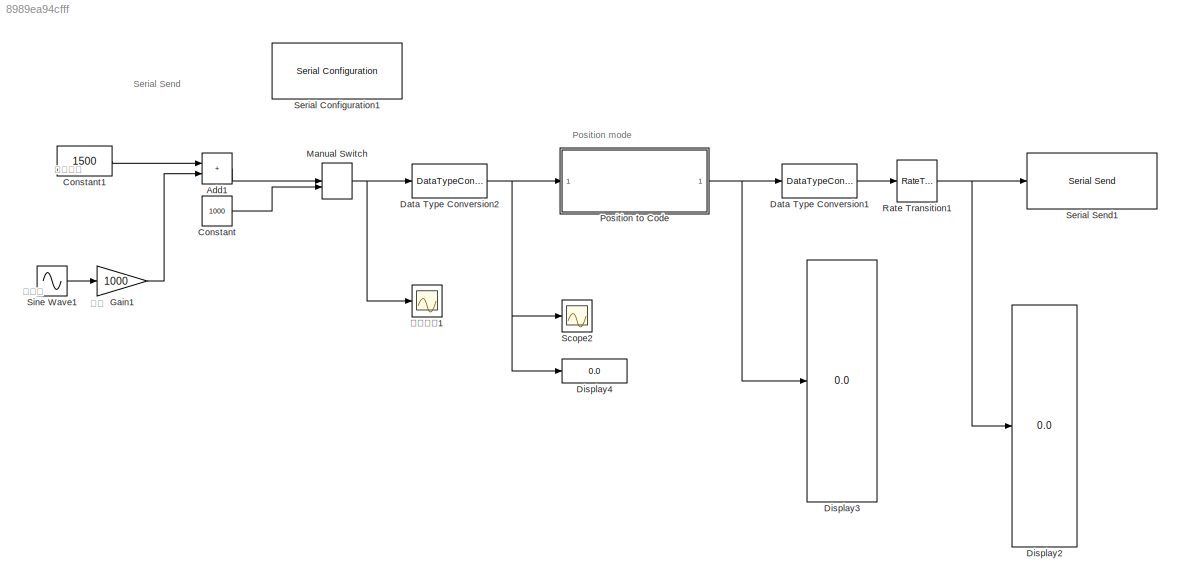
MODEL slx_8989ea94cfff
KIND model
CONFIG AbsTol = auto
CONFIG EnableMultiTasking = off
CONFIG FixedStep = 0.002
CONFIG MaxStep = auto
CONFIG MinStep = auto
CONFIG RelTol = 1e-3
CONFIG SampleTimeConstraint = Unconstrained
CONFIG Solver = ode4
CONFIG SolverName = ode4
CONFIG StartTime = 0.0
CONFIG StopTime = 10
BLOCK [Sum] Add1
  IconShape = rectangular
  Ports = [2, 1]
BLOCK [Constant] Constant
  Value = 1000
BLOCK [Constant] Constant1
  OutDataTypeStr = int16
  SampleTime = 1
  Value = 1500
BLOCK [DataTypeConversion] Data Type Conversion1
  OutDataTypeStr = uint8
  RndMeth = Floor
  SaturateOnIntegerOverflow = off
BLOCK [DataTypeConversion] Data Type Conversion2
  OutDataTypeStr = double
  RndMeth = Ceiling
  SaturateOnIntegerOverflow = off
BLOCK [Display] Display2
  Decimation = 1
  Ports = [1]
BLOCK [Display] Display3
  Decimation = 1
  Format = long
  Ports = [1]
BLOCK [Display] Display4
  Decimation = 1
  Format = long
  Ports = [1]
BLOCK [Gain] Gain1
  Gain = 1000
  OutDataTypeStr = int16
BLOCK [ManualSwitch] Manual Switch
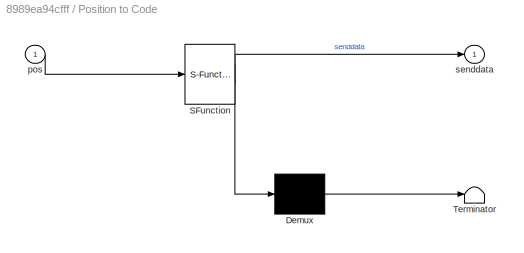
BLOCK [SubSystem] Position to Code
  ErrorFcn = Stateflow.Translate.translate
  PermitHierarchicalResolution = ExplicitOnly
  Ports = [1, 1]
  RequestExecContextInheritance = off
  SFBlockType = MATLAB Function
  TreatAsAtomicUnit = on
BLOCK [Demux] Position to Code/ Demux 
  Outputs = 1
  Ports = [1, 1]
BLOCK [S-Function] Position to Code/ SFunction 
  EnableBusSupport = on
  FunctionName = sf_sfun
  PortCounts = [1 2]
  Ports = [1, 2]
  SFcnIsStateOwnerBlock = off
  SFunctionDeploymentMode = off
  Tag = Stateflow S-Function 1
BLOCK [Terminator] Position to Code/ Terminator 
BLOCK [Inport] Position to Code/pos
BLOCK [Outport] Position to Code/senddata
  VectorParamsAs1DForOutWhenUnconnected = off
BLOCK [RateTransition] Rate Transition1
  OutPortSampleTime = 0.004
BLOCK [Scope] Scope2
  Floating = off
  NumInputPorts = 1
  Ports = [1]
  ScopeSpecificationString = Simulink.scopes.TimeScopeBlockCfg('CurrentConfiguration', extmgr.ConfigurationSet(extmgr.Configuration('Core','General UI',true),extmgr.Configuration('Core','Source UI',true),extmgr.Configuration('Sources','WiredSimulink',true,'DataLoggingVariableName','ScopeData1'),extmgr.Configuration('Visuals','Time Domain',true,'SerializedDisplays',{struct('MinYLimReal','17000.00000','MaxYLimReal','37000.00000...<+1465ch>
BLOCK [Reference] Serial Configuration1  REF=instrumentlib/Serial Configuration
  Ports = []
  Priority = -200000
  SourceBlock = instrumentlib/Serial Configuration
  SourceProductBaseCode = IC
  SourceType = Serial Configuration
BLOCK [Reference] Serial Send1  REF=instrumentlib/Serial Send
  Ports = [1]
  SourceBlock = instrumentlib/Serial Send
  SourceProductBaseCode = IC
  SourceType = Serial Send
BLOCK [Sin] Sine Wave1
  Frequency = 3.14
  Ports = [0, 1]
  SampleTime = 0
BLOCK [Scope] 位置指令1
  Floating = off
  NumInputPorts = 1
  Ports = [1]
  ScopeSpecificationString = Simulink.scopes.TimeScopeBlockCfg('CurrentConfiguration', extmgr.ConfigurationSet(extmgr.Configuration('Core','General UI',true),extmgr.Configuration('Core','Source UI',true),extmgr.Configuration('Sources','WiredSimulink',true,'DataLoggingVariableName','ScopeData2'),extmgr.Configuration('Visuals','Time Domain',true,'SerializedDisplays',{struct('MinYLimReal','7680.125','MaxYLimReal','33278.875','YL...<+1401ch>
ANNOTATION (root): Serial Send
ANNOTATION (root): Position mode
ANNOTATION (root): 振動中心
ANNOTATION (root): 振幅
ANNOTATION (root): 正弦波
LINE Add1:1 -> Manual Switch:1
LINE Constant1:1 -> Add1:1
LINE Constant:1 -> Manual Switch:2
LINE Data Type Conversion1:1 -> Rate Transition1:1
NET Data Type Conversion2:1 -> Display4:1, Position to Code:1, Scope2:1
LINE Gain1:1 -> Add1:2
NET Manual Switch:1 -> Data Type Conversion2:1, 位置指令1:1
NET Position to Code:1 -> Data Type Conversion1:1, Display3:1
NET Rate Transition1:1 -> Display2:1, Serial Send1:1
LINE Sine Wave1:1 -> Gain1:1
note: NET lines group one-source signal fan-out (src -> all destinations, sorted); 1:1 wires keep LINE
CHART Position to Code states=1 transitions=1
  STATE_LABEL 'eML_blk_kernel()'
  STATE_LABEL "SCRIPT:\n% script_sendTargetPosition\n% MATLAB EPOS LibraryのsendTargetPosition()から書き換え\n\n% function [] = sendTargetPosition( obj, pos )\n\nfunction senddata = func_sendTargetPosition(pos)\n%Sets the TargetPosition for Profile Position mode\n%pos must be an integer.\npos_hex = '';\n\nif pos >= 0\n    pos_hex = dec2hex(pos, 8);\nelse\n    pos_hex = dec2hex(2^32+pos, 8);\nend\n\n%% Build write object request frame E...<+3160ch>"
CHART  states=0 transitions=0
